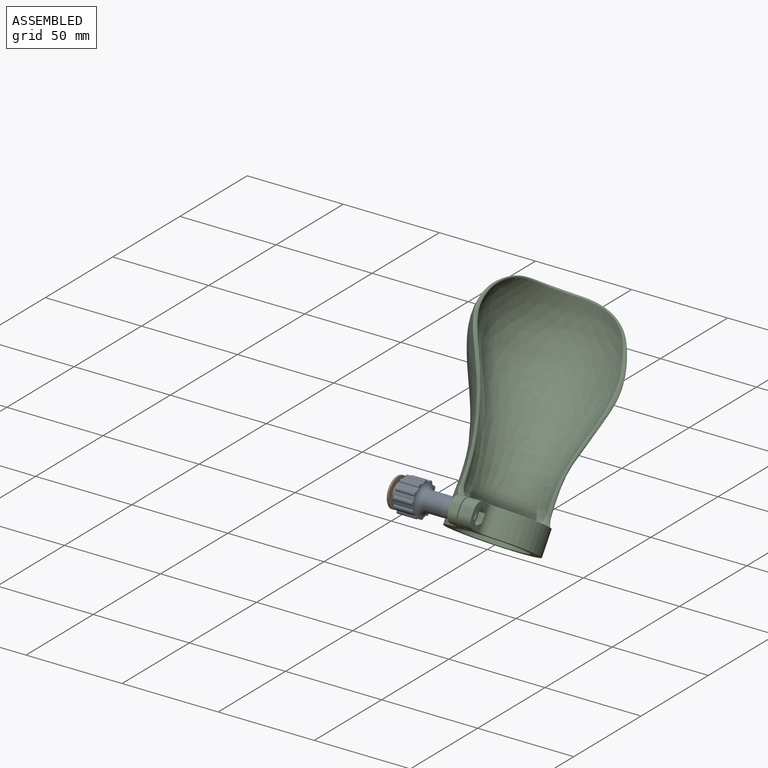
[diagram: assembled view]
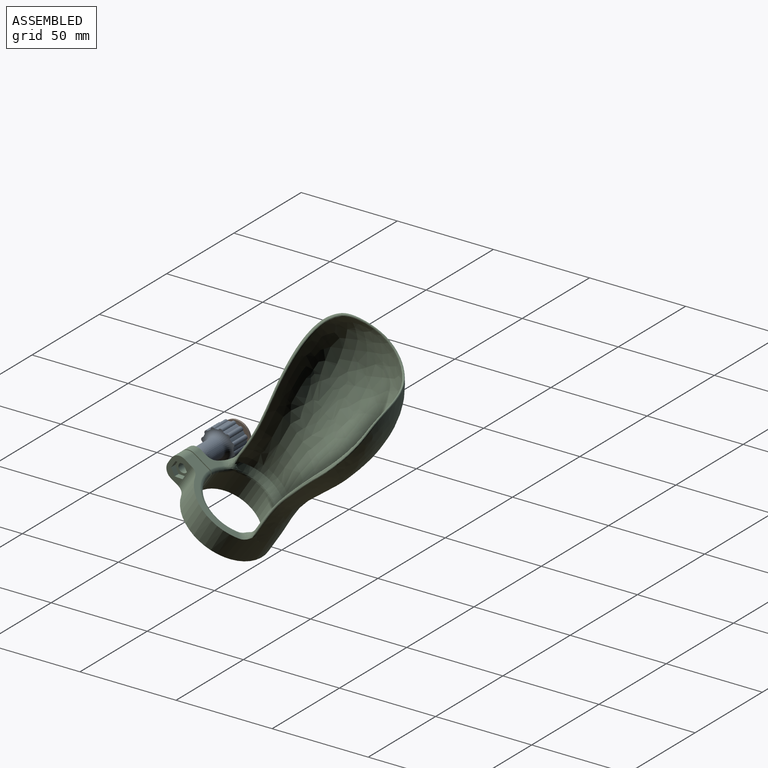
[diagram: assembled view, second angle]
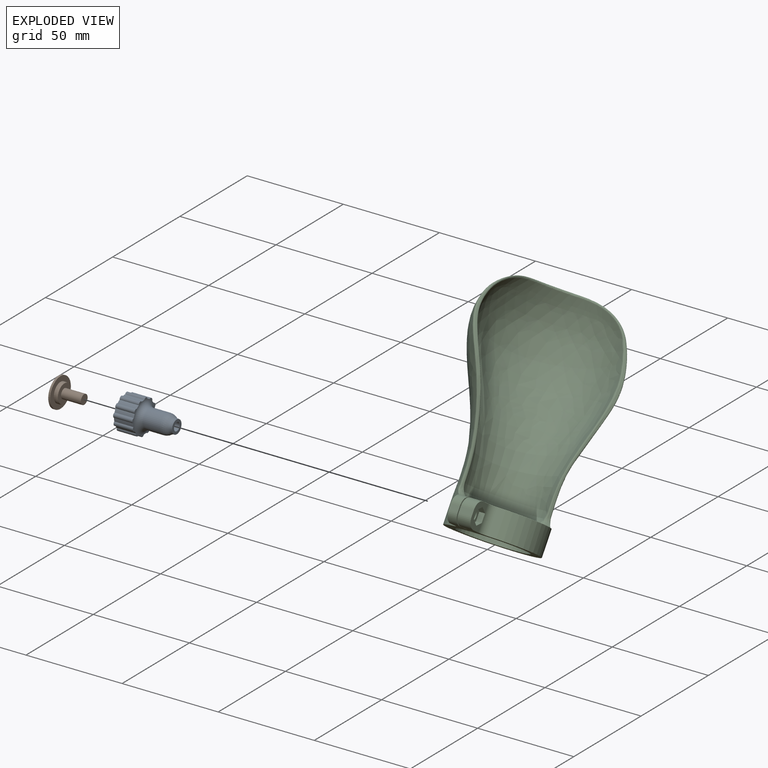
[diagram: exploded view]
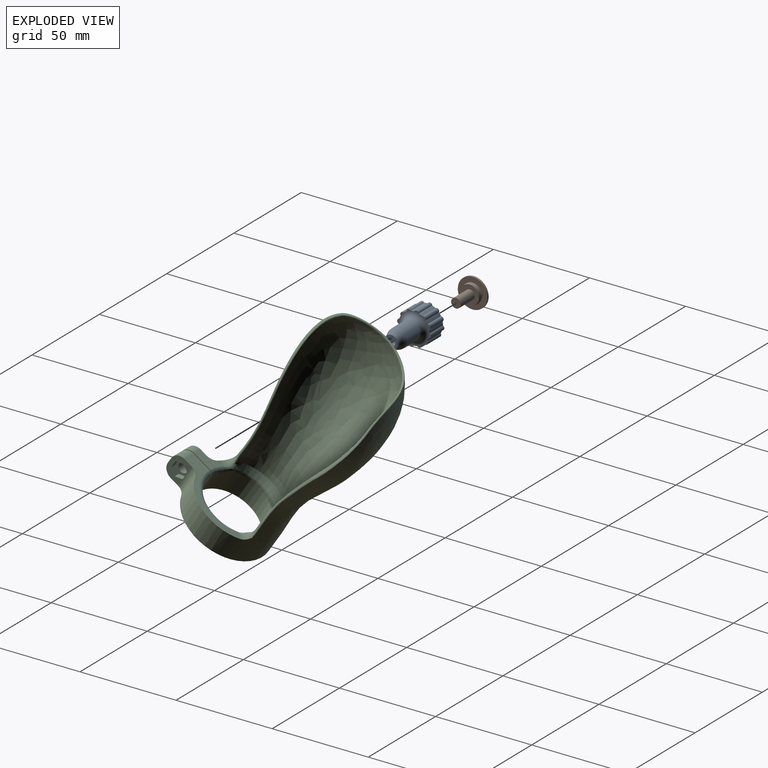
[diagram: exploded view, second angle]
ASSEMBLY  parts=3 mates=2
PART A: 42 faces, bbox 17.6x17.6x28.7 mm
  f0: cylinder r=5mm len=10mm, axis (0,0,-1), area 280.7mm2, adj f38,f41
  f1: cylinder r=2.1mm len=12mm, axis (0,0,-1), area 158.3mm2, adj f3,f10
  f2: plane 10x10mm, normal (0,0,1), area 36.1mm2, adj f4,f5,f6,f7,f8,f9,f34
  f3: plane 7x7mm, normal (0,0,-1), area 24.6mm2, adj f1,f39
  f4: plane 10x3.5mm, normal (0.5,0.87,0), area 40.4mm2, adj f2,f5,f9,f10
  f5: plane 10x3.5mm, normal (-0.5,0.87,0), area 40.4mm2, adj f2,f4,f6,f10
  f6: plane 10x4.04mm, normal (-1,0,0), area 40.4mm2, adj f2,f5,f7,f10
  f7: plane 10x3.5mm, normal (-0.5,-0.87,0), area 40.4mm2, adj f2,f6,f8,f10
  f8: plane 10x3.5mm, normal (0.5,-0.87,0), area 40.4mm2, adj f2,f7,f9,f10
  f9: plane 10x4.04mm, normal (1,0,0), area 40.4mm2, adj f2,f4,f8,f10
  f10: plane 8.08x7mm, normal (0,0,1), area 28.6mm2, adj f1,f4,f5,f6,f7,f8,f9
  f11: cylinder r=1.22mm len=10mm, axis (0,0,-1), area 32.2mm2, adj f12,f35,f36,f37
  f12: cylinder r=8.07mm len=10mm, axis (0,0,-1), area 18.6mm2, adj f11,f13,f36,f37
  f13: cylinder r=1.22mm len=10mm, axis (0,0,-1), area 32.2mm2, adj f12,f14,f36,f37
  f14: cylinder r=8.07mm len=10mm, axis (0,0,-1), area 18.6mm2, adj f13,f15,f36,f37
  f15: cylinder r=1.22mm len=10mm, axis (0,0,-1), area 32.2mm2, adj f14,f16,f36,f37
  f16: cylinder r=8.07mm len=10mm, axis (0,0,-1), area 18.6mm2, adj f15,f17,f36,f37
  f17: cylinder r=1.22mm len=10mm, axis (0,0,-1), area 32.2mm2, adj f16,f18,f36,f37
  f18: cylinder r=8.07mm len=10mm, axis (0,0,-1), area 18.6mm2, adj f17,f19,f36,f37
  f19: cylinder r=1.22mm len=10mm, axis (0,0,-1), area 32.2mm2, adj f18,f20,f36,f37
  f20: cylinder r=8.07mm len=10mm, axis (0,0,-1), area 18.6mm2, adj f19,f21,f36,f37
  f21: cylinder r=1.22mm len=10mm, axis (0,0,-1), area 32.2mm2, adj f20,f22,f36,f37
  f22: cylinder r=8.07mm len=10mm, axis (0,0,-1), area 18.6mm2, adj f21,f23,f36,f37
  f23: cylinder r=1.22mm len=10mm, axis (0,0,-1), area 32.2mm2, adj f22,f24,f36,f37
  f24: cylinder r=8.07mm len=10mm, axis (0,0,-1), area 18.6mm2, adj f23,f25,f36,f37
  f25: cylinder r=1.22mm len=10mm, axis (0,0,-1), area 32.2mm2, adj f24,f26,f36,f37
  f26: cylinder r=8.07mm len=10mm, axis (0,0,-1), area 18.6mm2, adj f25,f27,f36,f37
  f27: cylinder r=1.22mm len=10mm, axis (0,0,-1), area 32.2mm2, adj f26,f28,f36,f37
  f28: cylinder r=8.07mm len=10mm, axis (0,0,-1), area 18.6mm2, adj f27,f29,f36,f37
  f29: cylinder r=1.22mm len=10mm, axis (0,0,-1), area 32.2mm2, adj f28,f30,f36,f37
  f30: cylinder r=8.07mm len=10mm, axis (0,0,-1), area 18.6mm2, adj f29,f31,f36,f37
  f31: cylinder r=1.22mm len=10mm, axis (0,0,-1), area 32.2mm2, adj f30,f32,f36,f37
  f32: cylinder r=8.07mm len=10mm, axis (0,0,-1), area 18.6mm2, adj f31,f33,f36,f37
  f33: cylinder r=1.22mm len=10mm, axis (0,0,-1), area 32.2mm2, adj f32,f35,f36,f37
  f34: cylinder r=5mm len=10mm, axis (0,0,-1), area 157.1mm2, adj f2,f36
  f35: cylinder r=8.07mm len=10mm, axis (0,0,-1), area 18.6mm2, adj f11,f33,f36,f37
  f36: plane 17.64x17.64mm, normal (0,0,1), area 143.9mm2, adj f11,f12,f13,f14,f15,f16,f17,f18
  f37: plane 17.64x17.64mm, normal (0,0,-1), area 21.3mm2, adj f11,f12,f13,f14,f15,f16,f17,f18
  f38: torus R=8mm, axis (0,0,1), area 180.3mm2, adj f0,f37
  f39: cylinder r=3.5mm len=7mm, axis (0,0,-1), area 8.8mm2, adj f3,f40
  f40: torus R=6.5mm, axis (0,0,1), area 43.3mm2, adj f39,f41
  f41: sphere r=5mm, area 91.6mm2, adj f0,f40
PART B: 9 faces, bbox 15.4x15.4x15.4 mm
  f0: cylinder r=5mm len=10mm, axis (0,0,1), area 31.4mm2, adj f4,f6
  f1: plane 9.6x9.6mm, normal (0,0,-1), area 52.7mm2, adj f6,f7
  f2: cylinder r=7.68mm len=15.36mm, axis (0,0,-1), area 48.3mm2, adj f4,f5
  f3: plane 5.36x5.36mm, normal (0,0,1), area 22.6mm2, adj f5
  f4: plane 15.36x15.36mm, normal (0,0,-1), area 106.8mm2, adj f0,f2
  f5: cone r=2.68mm half-angle=68.2deg, axis (0,0,-1), area 175.3mm2, adj f2,f3
  f6: cone r=5mm half-angle=11.3deg, axis (0,0,1), area 31.4mm2, adj f0,f1
  f7: cylinder r=2.5mm len=10.35mm, axis (0,0,1), area 162.6mm2, adj f1,f8
  f8: plane 5x5mm, normal (0,0,-1), area 19.6mm2, adj f7
PART C: 68 faces, bbox 65.2x74.9x113 mm
  f0: plane 43.05x22.01mm, normal (0,0,1), area 188.7mm2, adj f1,f5,f12,f14,f17,f60,f61,f62
  f1: plane 13x9.53mm, normal (1,0,0), area 67.6mm2, adj f0,f8,f9,f14,f17,f18,f19,f21
  f2: cylinder r=2.5mm len=5mm, axis (-1,0,0), area 58.9mm2, adj f12,f25
  f3: plane 4.75x3mm, normal (0,-1,0), area 14.2mm2, adj f10,f11,f15,f16
  f4: cylinder r=2.5mm len=5mm, axis (-1,0,0), area 74.6mm2, adj f10,f11
  f5: cylinder r=22.25mm len=44.5mm, axis (0,0,-1), area 1604.4mm2, adj f0,f7,f8,f13,f14,f26,f59,f60
  f6: cylinder r=17.25mm len=34.5mm, axis (0,0,-1), area 1257.7mm2, adj f8,f11,f12,f63,f64,f65,f66,f67
  f7: plane 11.45x9.31mm, normal (0,0,1), area 61.4mm2, adj f5,f10,f11,f13,f16,f57,f58,f59
  f8: plane 51.25x44.5mm, normal (0,0,-1), area 703.4mm2, adj f1,f5,f6,f10,f11,f12,f13,f14
  f9: plane 6.75x3mm, normal (0,-1,0), area 20.2mm2, adj f1,f12,f17,f18
  f10: plane 13x8.65mm, normal (-1,0,0), area 82.1mm2, adj f3,f4,f7,f8,f13,f15,f16
  f11: plane 16.76x13.01mm, normal (1,0,0), area 186.6mm2, adj f3,f4,f6,f7,f8,f15,f16,f66
  f12: plane 16.76x13.01mm, normal (-1,0,0), area 186.5mm2, adj f0,f2,f6,f8,f9,f17,f18,f63
  f13: cylinder r=5mm len=13mm, axis (0,0,-1), area 77.7mm2, adj f5,f7,f8,f10
  f14: cylinder r=5mm len=13mm, axis (0,0,-1), area 72.5mm2, adj f0,f1,f5,f8,f20
  f15: cylinder r=5mm len=5mm, axis (-1,0,0), area 37.3mm2, adj f3,f8,f10,f11
  f16: cylinder r=5mm len=5mm, axis (1,0,0), area 37.3mm2, adj f3,f7,f10,f11
  f17: cylinder r=5mm len=6.75mm, axis (1,0,0), area 53mm2, adj f0,f1,f9,f12
  f18: cylinder r=5mm len=6.75mm, axis (-1,0,0), area 53mm2, adj f1,f8,f9,f12
  f19: plane 3.53x3mm, normal (0,-0.5,0.87), area 12.2mm2, adj f1,f20,f24,f25
  f20: plane 4.35x3mm, normal (0,-1,0), area 13mm2, adj f14,f19,f21,f25
  f21: plane 3.53x3mm, normal (0,-0.5,-0.87), area 12.2mm2, adj f1,f20,f22,f25
  f22: plane 3.65x3mm, normal (0,0.5,-0.87), area 12.6mm2, adj f1,f21,f23,f25
  f23: plane 4.21x3mm, normal (0,1,0), area 12.6mm2, adj f1,f22,f24,f25
  f24: plane 3.65x3mm, normal (0,0.5,0.87), area 12.6mm2, adj f1,f19,f23,f25
  f25: plane 8.43x7.18mm, normal (1,0,0), area 26mm2, adj f2,f19,f20,f21,f22,f23,f24
  f26: bspline ~100x63.12mm, area 8661.6mm2, adj f5,f40,f43,f46,f49,f50,f53,f54
  f27: bspline ~66.93x13.56mm, area 18.8mm2, adj f35,f37,f39,f40,f58
  f28: bspline ~100x59.76mm, area 7362.7mm2, adj f36,f39,f41,f42,f44,f45,f47,f48
  f29: bspline ~50.69x8.62mm, area 24.6mm2, adj f34,f38,f41,f56,f61
  f30: bspline ~38.18x20.3mm, area 12.2mm2, adj f32,f35,f45,f46
  f31: bspline ~39.92x17.76mm, area 9.6mm2, adj f33,f34,f47,f54
  f32: bspline ~16.12x14.36mm, area 0.4mm2, adj f30,f48,f49
  f33: bspline ~15.39x13.3mm, area 0.6mm2, adj f31,f51,f53
  f34: bspline ~27.75x9.36mm, area 25.9mm2, adj f29,f31,f44,f55
  f35: bspline ~29.79x12.04mm, area 22.8mm2, adj f27,f30,f42,f43
  f36: bspline ~35.52x32.1mm, area 414.9mm2, adj f28,f37,f38,f57,f62,f64,f65,f67
  f37: bspline ~7.22x1.76mm, area 3.4mm2, adj f27,f36,f39,f57
  f38: bspline ~6.08x1.46mm, area 3.2mm2, adj f29,f36,f41,f62
  f39: bspline ~45.01x7.04mm, area 41.5mm2, adj f27,f28,f37,f42
  f40: bspline ~46.37x6.69mm, area 42.7mm2, adj f26,f27,f43,f59
  f41: bspline ~48.39x7.83mm, area 44.7mm2, adj f28,f29,f38,f44
  f42: bspline ~39.14x13.06mm, area 34.4mm2, adj f28,f35,f39,f45
  f43: bspline ~39.15x12.95mm, area 31.5mm2, adj f26,f35,f40,f46
  f44: bspline ~33.35x9.03mm, area 32.1mm2, adj f28,f34,f41,f47
  f45: bspline ~18.66x6.46mm, area 17.8mm2, adj f28,f30,f42,f48
  f46: bspline ~20.63x6.55mm, area 22.5mm2, adj f26,f30,f43,f49
  f47: bspline ~18.63x7.29mm, area 15.1mm2, adj f28,f31,f44,f51
  f48: bspline ~33.22x14.67mm, area 38.9mm2, adj f28,f32,f45,f49,f52
  f49: bspline ~35.23x12.93mm, area 27.1mm2, adj f26,f32,f46,f48,f50,f52
  f50: bspline ~17.63x13.93mm, area 9.9mm2, adj f26,f49,f52,f53
  f51: bspline ~28.41x15.21mm, area 32.4mm2, adj f28,f33,f47,f52,f53
  f52: bspline ~19.88x17.12mm, area 25.8mm2, adj f28,f48,f49,f50,f51,f53
  f53: bspline ~29.47x13.36mm, area 28mm2, adj f26,f33,f50,f51,f52,f54
  f54: bspline ~20.88x9.06mm, area 19.4mm2, adj f26,f31,f53,f55
  f55: bspline ~35.21x9.85mm, area 31.2mm2, adj f26,f34,f54,f56
  f56: bspline ~46.08x6.75mm, area 44.9mm2, adj f26,f29,f55,f60
  f57: bspline ~9.85x5.73mm, area 15.3mm2, adj f7,f36,f37,f58,f67
  f58: bspline ~6.38x6.2mm, area 6.1mm2, adj f7,f27,f57,f59
  f59: bspline ~10.19x9.25mm, area 8mm2, adj f5,f7,f26,f40,f58
  f60: bspline ~10.24x9.21mm, area 7.1mm2, adj f0,f5,f26,f56,f61
  f61: bspline ~5.35x5mm, area 8mm2, adj f0,f29,f60,f62
  f62: bspline ~10.22x5.44mm, area 15mm2, adj f0,f36,f38,f61,f64
  f63: torus R=19.25mm, axis (0,0,1), area 125.2mm2, adj f0,f6,f12,f64
  f64: bspline ~7.46x6.95mm, area 16.5mm2, adj f6,f36,f62,f63,f65
  f65: bspline ~31.16x27.93mm, area 69.9mm2, adj f6,f36,f64,f67
  f66: torus R=19.25mm, axis (0,0,1), area 23.1mm2, adj f6,f7,f11,f67
  f67: bspline ~8.03x6.27mm, area 16.1mm2, adj f6,f36,f57,f65,f66
PLACE A rot(axis=(-0.71,-0.07,0.71),171.5deg) t=(-39.53,-37.74,22.7)mm
PLACE B rot(axis=(-0.71,-0.07,0.71),171.5deg) t=(-69.53,-45.54,2.15)mm
PLACE C rot(axis=(-1,0,0),33.9deg) t=(-34.66,-18.11,1.7)mm fixed
MATE slider A.f1 <-> B.f0  axis (1,0,0) through (-51.53,-37.74,22.7)mm
MATE revolute C.f2 <-> A.f1  axis (-1,0,0) through (-32.53,-37.74,22.7)mm
